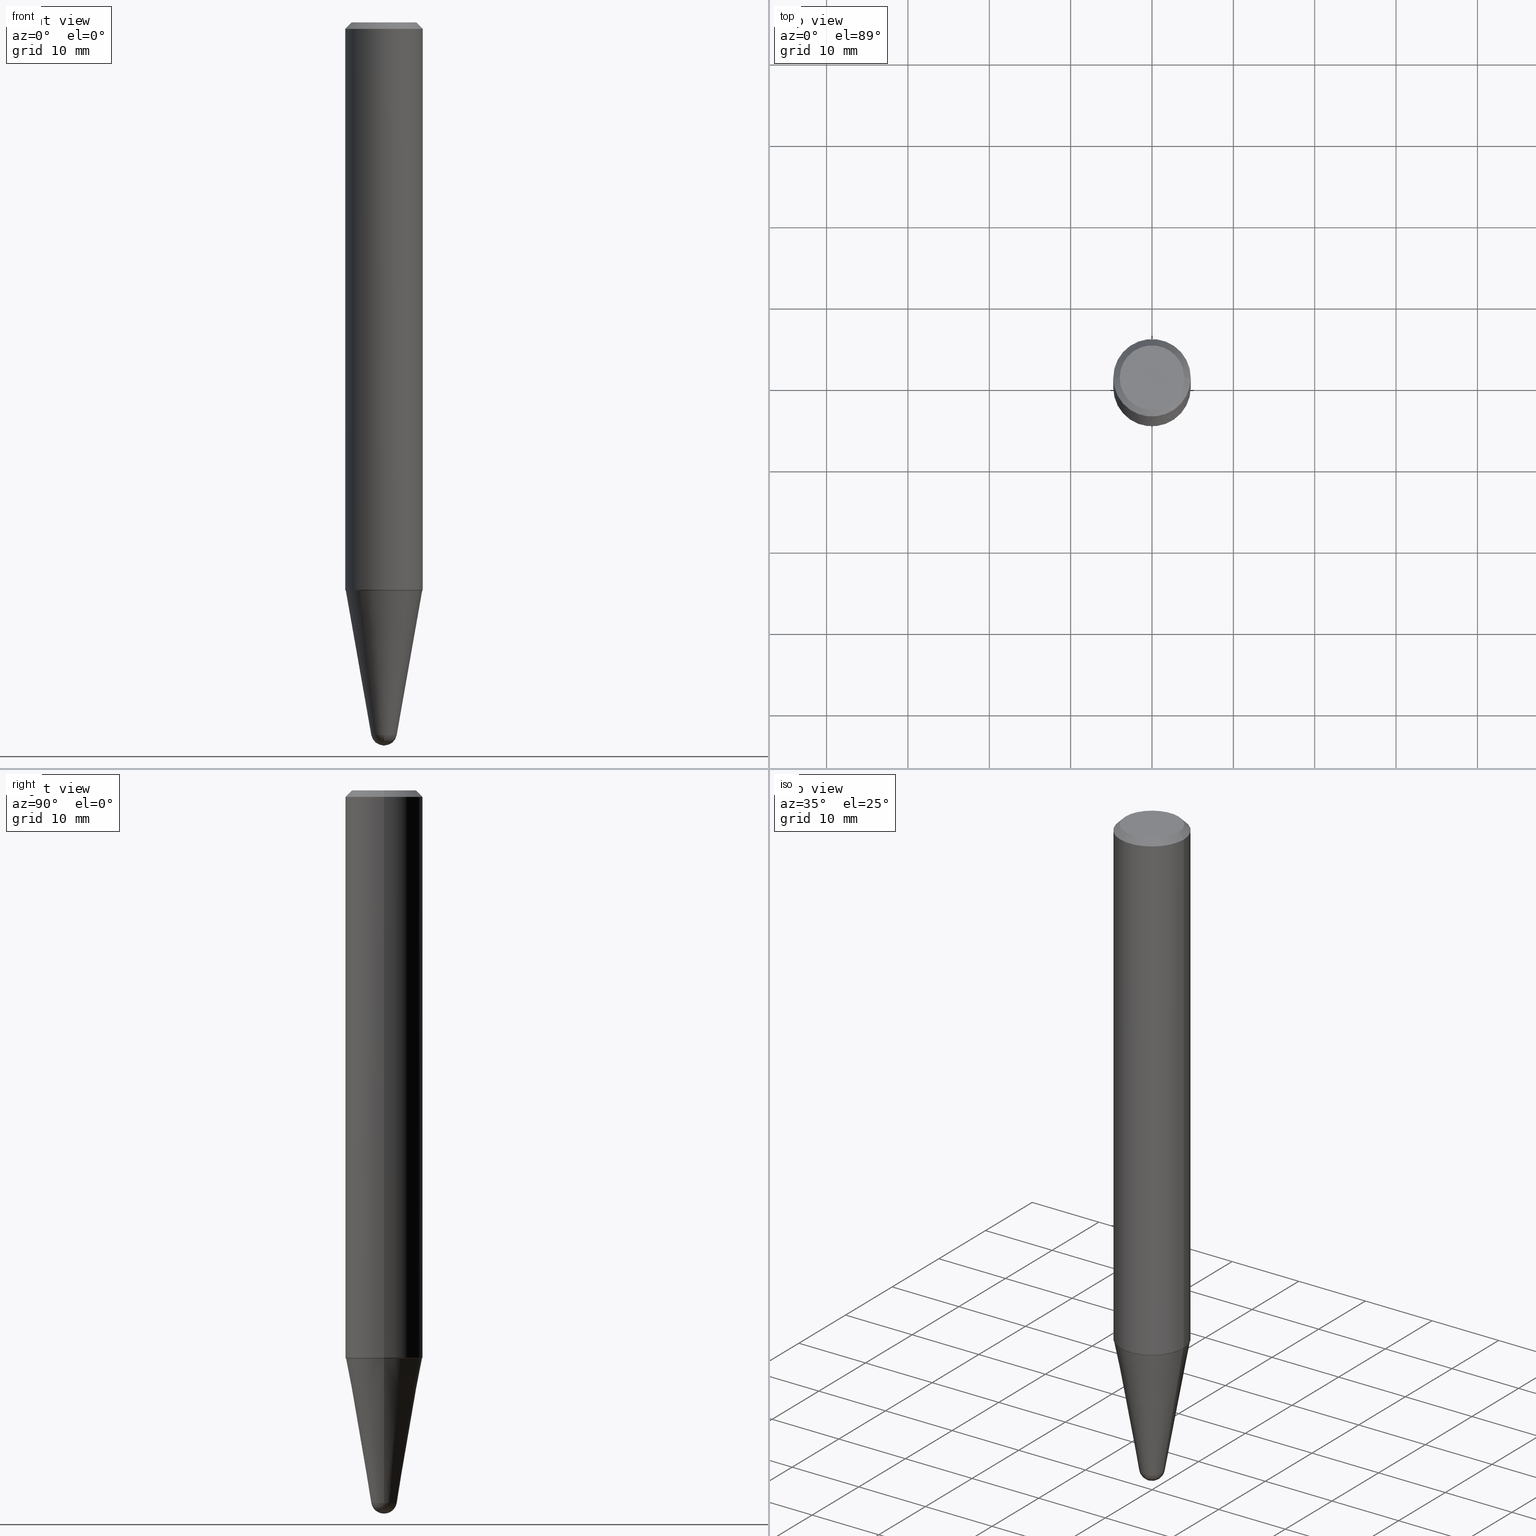
[diagram: canonical four-view strip — front | top / right | iso, engineering-drawing reading convention]
A machine part, canonical four-view strip (front | top / right | iso — engineering-drawing reading convention). The complete STEP part file that produces these views, byte-faithful:
ISO-10303-21;
HEADER;
FILE_DESCRIPTION (( 'STEP AP203' ),
    '1' );
FILE_NAME ('32429.STEP',
    '2024-03-04T15:23:38',
    ( '' ),
    ( '' ),
    'SwSTEP 2.0',
    'SolidWorks 2023',
    '' );
FILE_SCHEMA (( 'CONFIG_CONTROL_DESIGN' ));
ENDSEC;

DATA;
#1 = EDGE_LOOP ( 'NONE', ( #403, #85, #121, #433, #364 ) ) ;
#2 = DATE_AND_TIME ( #39, #348 ) ;
#3 = CIRCLE ( 'NONE', #205, 0.1851889624799288592 ) ;
#4 = EDGE_LOOP ( 'NONE', ( #76, #127, #188, #369 ) ) ;
#5 =( NAMED_UNIT ( * ) PLANE_ANGLE_UNIT ( ) SI_UNIT ( $, .RADIAN. ) );
#6 = ORIENTED_EDGE ( 'NONE', *, *, #455, .F. ) ;
#7 = CONICAL_SURFACE ( 'NONE', #165, 0.06155048456326323025, 0.1745329251994330311 ) ;
#8 = ADVANCED_FACE ( 'NONE', ( #298 ), #368, .T. ) ;
#9 = ORIENTED_EDGE ( 'NONE', *, *, #258, .F. ) ;
#10 = EDGE_CURVE ( 'NONE', #226, #13, #335, .T. ) ;
#11 = ORIENTED_EDGE ( 'NONE', *, *, #307, .T. ) ;
#12 = VERTEX_POINT ( 'NONE', #308 ) ;
#13 = VERTEX_POINT ( 'NONE', #128 ) ;
#14 = AXIS2_PLACEMENT_3D ( 'NONE', #157, #386, #109 ) ;
#15 = ADVANCED_FACE ( 'NONE', ( #443 ), #447, .F. ) ;
#16 = EDGE_LOOP ( 'NONE', ( #432, #11 ) ) ;
#17 = PLANE ( 'NONE',  #362 ) ;
#18 = VECTOR ( 'NONE', #136, 39.37007874015748143 ) ;
#19 = DIRECTION ( 'NONE',  ( 2.438088387897960049E-29, -3.491481338843145188E-15, -1.000000000000000000 ) ) ;
#20 = DIRECTION ( 'NONE',  ( 1.000000000000000000, -6.982962677686276177E-15, 0.000000000000000000 ) ) ;
#21 = LINE ( 'NONE', #311, #18 ) ;
#22 = PRODUCT_DEFINITION_SHAPE ( 'NONE', 'NONE',  #168 ) ;
#23 = CARTESIAN_POINT ( 'NONE',  ( 0.06155048456326323025, -1.246966492451259664E-14, -3.448353011104182908 ) ) ;
#24 = LINE ( 'NONE', #314, #49 ) ;
#25 = CARTESIAN_POINT ( 'NONE',  ( 6.725039217009124520E-29, -9.601573681818649859E-15, -2.750000000000000000 ) ) ;
#26 = AXIS2_PLACEMENT_3D ( 'NONE', #110, #113, #243 ) ;
#27 = DIRECTION ( 'NONE',  ( 1.000000000000000000, -6.982962677686269866E-15, 0.000000000000000000 ) ) ;
#28 = CARTESIAN_POINT ( 'NONE',  ( 8.432839721369867924E-29, -1.203986018801382488E-14, -3.448353011104182908 ) ) ;
#29 = COORDINATED_UNIVERSAL_TIME_OFFSET ( 5, 0, .BEHIND. ) ;
#30 = CIRCLE ( 'NONE', #297, 0.1874999999999999722 ) ;
#31 =( LENGTH_UNIT ( ) NAMED_UNIT ( * ) SI_UNIT ( $, .METRE. ) );
#32 = COORDINATED_UNIVERSAL_TIME_OFFSET ( 5, 0, .BEHIND. ) ;
#33 =( CONVERSION_BASED_UNIT ( 'INCH', #68 ) LENGTH_UNIT ( ) NAMED_UNIT ( #101 ) );
#34 = CIRCLE ( 'NONE', #104, 0.06155048456326323025 ) ;
#35 = APPLICATION_PROTOCOL_DEFINITION ( 'international standard', 'config_control_design', 1994, #259 ) ;
#36 = DIRECTION ( 'NONE',  ( -2.445468806185136597E-29, 3.491481338843145583E-15, 1.000000000000000000 ) ) ;
#37 = CYLINDRICAL_SURFACE ( 'NONE', #97, 0.1875000000000001943 ) ;
#38 = ORIENTED_EDGE ( 'NONE', *, *, #322, .F. ) ;
#39 = CALENDAR_DATE ( 2024, 4, 3 ) ;
#40 = CARTESIAN_POINT ( 'NONE',  ( 1.231246885473085875E-44, -1.757894238219357858E-30, -5.034809204513210114E-16 ) ) ;
#41 = DIRECTION ( 'NONE',  ( 1.000000000000000000, -6.982962677686265922E-15, 4.852736867747361162E-29 ) ) ;
#42 = ORIENTED_EDGE ( 'NONE', *, *, #139, .T. ) ;
#43 = APPROVAL_DATE_TIME ( #354, #262 ) ;
#44 = AXIS2_PLACEMENT_3D ( 'NONE', #89, #233, #204 ) ;
#45 = EDGE_LOOP ( 'NONE', ( #326, #372 ) ) ;
#46 = AXIS2_PLACEMENT_3D ( 'NONE', #141, #419, #66 ) ;
#47 = ORIENTED_EDGE ( 'NONE', *, *, #228, .T. ) ;
#48 = ORIENTED_EDGE ( 'NONE', *, *, #339, .T. ) ;
#49 = VECTOR ( 'NONE', #241, 39.37007874015748143 ) ;
#50 = ORIENTED_EDGE ( 'NONE', *, *, #339, .F. ) ;
#51 = DIRECTION ( 'NONE',  ( 1.000000000000000000, -6.982962677686265133E-15, 0.000000000000000000 ) ) ;
#52 = LINE ( 'NONE', #172, #449 ) ;
#53 = CIRCLE ( 'NONE', #120, 0.06155048456326323025 ) ;
#54 = DIRECTION ( 'NONE',  ( 1.000000000000000000, -6.982962677686265922E-15, 4.852736867747361162E-29 ) ) ;
#55 = CARTESIAN_POINT ( 'NONE',  ( -0.1851889624799288592, -8.285726961488018461E-15, -2.750000000000000000 ) ) ;
#56 = ADVANCED_FACE ( 'NONE', ( #134 ), #270, .T. ) ;
#57 = LOCAL_TIME ( 10, 23, 38.00000000000000000, #283 ) ;
#58 = CARTESIAN_POINT ( 'NONE',  ( 8.698928373755703197E-29, -1.158290521407307856E-14, -3.437499999999999556 ) ) ;
#59 = DIRECTION ( 'NONE',  ( 1.000000000000000000, -6.982962677686265922E-15, 4.876176775795935793E-29 ) ) ;
#60 = CARTESIAN_POINT ( 'NONE',  ( -0.1874999999999999722, 1.200196710227326499E-15, -0.03125000000000003469 ) ) ;
#61 = DIRECTION ( 'NONE',  ( 2.445468806185136597E-29, -3.491481338843145583E-15, -1.000000000000000000 ) ) ;
#62 = CIRCLE ( 'NONE', #235, 0.1851889624799288592 ) ;
#63 = EDGE_CURVE ( 'NONE', #162, #394, #21, .T. ) ;
#64 = CARTESIAN_POINT ( 'NONE',  ( 6.714318813664267806E-29, -9.586267787043473841E-15, -2.745616217504903922 ) ) ;
#65 = AXIS2_PLACEMENT_3D ( 'NONE', #387, #324, #27 ) ;
#66 = DIRECTION ( 'NONE',  ( 1.000000000000000000, -6.982962677686265922E-15, 4.891558762689333505E-29 ) ) ;
#67 = CARTESIAN_POINT ( 'NONE',  ( -1.450455682483482035E-44, 2.070866303999251778E-30, 5.931196827434296760E-16 ) ) ;
#68 = LENGTH_MEASURE_WITH_UNIT ( LENGTH_MEASURE( 0.02539999999999999897 ), #31 );
#69 = CARTESIAN_POINT ( 'NONE',  ( 0.1562500000000003608, -1.233702489286408115E-15, -5.034809204513129255E-16 ) ) ;
#70 =( NAMED_UNIT ( * ) SI_UNIT ( $, .STERADIAN. ) SOLID_ANGLE_UNIT ( ) );
#71 = CARTESIAN_POINT ( 'NONE',  ( 6.723816482606031719E-29, -9.599827941149227567E-15, -2.749499999999999833 ) ) ;
#72 = CARTESIAN_POINT ( 'NONE',  ( 8.698928373755703197E-29, -1.158290521407307856E-14, -3.437499999999999556 ) ) ;
#73 = APPROVAL_PERSON_ORGANIZATION ( #145, #436, #426 ) ;
#74 = SECURITY_CLASSIFICATION_LEVEL ( 'unclassified' ) ;
#75 = CARTESIAN_POINT ( 'NONE',  ( -0.1562500000000003608, 1.145642314307902935E-15, -5.034809204513289000E-16 ) ) ;
#76 = ORIENTED_EDGE ( 'NONE', *, *, #228, .F. ) ;
#77 = ADVANCED_FACE ( 'NONE', ( #272 ), #191, .T. ) ;
#78 = PERSON_AND_ORGANIZATION ( #416, #429 ) ;
#79 = ORIENTED_EDGE ( 'NONE', *, *, #63, .T. ) ;
#80 = COORDINATED_UNIVERSAL_TIME_OFFSET ( 5, 0, .BEHIND. ) ;
#81 = CIRCLE ( 'NONE', #456, 0.1846889624799289975 ) ;
#82 = APPROVAL ( #321, 'UNSPECIFIED' ) ;
#83 = ORIENTED_EDGE ( 'NONE', *, *, #179, .F. ) ;
#84 = AXIS2_PLACEMENT_3D ( 'NONE', #40, #420, #279 ) ;
#85 = ORIENTED_EDGE ( 'NONE', *, *, #322, .T. ) ;
#86 = CONICAL_SURFACE ( 'NONE', #123, 0.1851889624799288592, 0.7853981633974141952 ) ;
#87 = VERTEX_POINT ( 'NONE', #240 ) ;
#88 = EDGE_CURVE ( 'NONE', #255, #226, #381, .T. ) ;
#89 = CARTESIAN_POINT ( 'NONE',  ( 8.432839721369867924E-29, -1.203986018801382488E-14, -3.448353011104182908 ) ) ;
#90 = ADVANCED_FACE ( 'NONE', ( #276 ), #306, .F. ) ;
#91 = CARTESIAN_POINT ( 'NONE',  ( -4.373424968893222302E-16, -0.06155048456327496392, -3.448353011104182908 ) ) ;
#92 = DIRECTION ( 'NONE',  ( -2.445468806185136597E-29, 3.491481338843145583E-15, 1.000000000000000000 ) ) ;
#93 = PRODUCT ( '32429', '32429', '', ( #160 ) ) ;
#94 = CARTESIAN_POINT ( 'NONE',  ( 0.1875000000000003608, -1.089557328910965200E-14, -2.745616217504903922 ) ) ;
#95 = CARTESIAN_POINT ( 'NONE',  ( 6.725039217009124520E-29, -9.601573681818649859E-15, -2.750000000000000000 ) ) ;
#96 = FACE_OUTER_BOUND ( 'NONE', #365, .T. ) ;
#97 = AXIS2_PLACEMENT_3D ( 'NONE', #67, #424, #41 ) ;
#98 = DIRECTION ( 'NONE',  ( 1.000000000000000000, -6.982962677686265133E-15, 0.000000000000000000 ) ) ;
#99 = DIRECTION ( 'NONE',  ( -2.445468806185136877E-29, 3.491481338843145188E-15, 1.000000000000000000 ) ) ;
#100 = ADVANCED_FACE ( 'NONE', ( #375 ), #244, .T. ) ;
#101 = DIMENSIONAL_EXPONENTS ( 1.000000000000000000, 0.000000000000000000, 0.000000000000000000, 0.000000000000000000, 0.000000000000000000, 0.000000000000000000, 0.000000000000000000 ) ;
#102 = DIRECTION ( 'NONE',  ( 1.000000000000000000, -6.982962677686276177E-15, 0.000000000000000000 ) ) ;
#103 = VECTOR ( 'NONE', #208, 39.37007874015748854 ) ;
#104 = AXIS2_PLACEMENT_3D ( 'NONE', #385, #285, #151 ) ;
#105 = FACE_OUTER_BOUND ( 'NONE', #263, .T. ) ;
#106 = CIRCLE ( 'NONE', #323, 0.1875000000000003608 ) ;
#107 = EDGE_CURVE ( 'NONE', #334, #13, #444, .T. ) ;
#108 = CARTESIAN_POINT ( 'NONE',  ( -0.06155048456326323025, -1.160251769112441577E-14, -3.448353011104182908 ) ) ;
#109 = DIRECTION ( 'NONE',  ( 1.000000000000000000, -6.982962677686269077E-15, 0.000000000000000000 ) ) ;
#110 = CARTESIAN_POINT ( 'NONE',  ( 8.698928373755703197E-29, -1.158290521407307856E-14, -3.437499999999999556 ) ) ;
#111 = DIRECTION ( 'NONE',  ( -2.445468806185136597E-29, 3.491481338843145583E-15, 1.000000000000000000 ) ) ;
#112 = CONICAL_SURFACE ( 'NONE', #129, 0.1874999999999999722, 0.7853981633974498333 ) ;
#113 = DIRECTION ( 'NONE',  ( -1.000000000000000000, 6.982962677686265922E-15, -4.883557194083112901E-29 ) ) ;
#114 = PERSON_AND_ORGANIZATION ( #416, #429 ) ;
#115 = AXIS2_PLACEMENT_3D ( 'NONE', #167, #111, #183 ) ;
#116 = ORIENTED_EDGE ( 'NONE', *, *, #142, .T. ) ;
#117 = CIRCLE ( 'NONE', #46, 0.1562500000000003608 ) ;
#118 = ORIENTED_EDGE ( 'NONE', *, *, #266, .F. ) ;
#119 = ORIENTED_EDGE ( 'NONE', *, *, #179, .T. ) ;
#120 = AXIS2_PLACEMENT_3D ( 'NONE', #170, #212, #20 ) ;
#121 = ORIENTED_EDGE ( 'NONE', *, *, #287, .F. ) ;
#122 = EDGE_LOOP ( 'NONE', ( #231, #194, #224, #6 ) ) ;
#123 = AXIS2_PLACEMENT_3D ( 'NONE', #274, #373, #51 ) ;
#124 = VERTEX_POINT ( 'NONE', #91 ) ;
#125 = AXIS2_PLACEMENT_3D ( 'NONE', #280, #175, #180 ) ;
#126 = EDGE_LOOP ( 'NONE', ( #38, #359, #367, #195, #192 ) ) ;
#127 = ORIENTED_EDGE ( 'NONE', *, *, #442, .T. ) ;
#128 = CARTESIAN_POINT ( 'NONE',  ( 0.1874999999999999722, -1.418414293905023123E-15, -0.03125000000000003469 ) ) ;
#129 = AXIS2_PLACEMENT_3D ( 'NONE', #382, #61, #380 ) ;
#130 = EDGE_CURVE ( 'NONE', #197, #87, #81, .T. ) ;
#131 = CIRCLE ( 'NONE', #84, 0.1562500000000003608 ) ;
#132 = CARTESIAN_POINT ( 'NONE',  ( 0.1874999999999999722, -1.395452166421010480E-15, -0.03125000000000003469 ) ) ;
#133 = CC_DESIGN_PERSON_AND_ORGANIZATION_ASSIGNMENT ( #360, #431, ( #168 ) ) ;
#134 = FACE_OUTER_BOUND ( 'NONE', #265, .T. ) ;
#135 = DIRECTION ( 'NONE',  ( 1.000000000000000000, -6.982962677686265133E-15, 0.000000000000000000 ) ) ;
#136 = DIRECTION ( 'NONE',  ( -0.4226182617406660791, 6.167240084480654596E-15, 0.9063077870366654798 ) ) ;
#137 = DIRECTION ( 'NONE',  ( 1.000000000000000000, -6.982962677686266711E-15, 0.000000000000000000 ) ) ;
#138 = LINE ( 'NONE', #23, #313 ) ;
#139 = EDGE_CURVE ( 'NONE', #394, #226, #52, .T. ) ;
#140 = CARTESIAN_POINT ( 'NONE',  ( 6.723816482606031719E-29, -9.599827941149227567E-15, -2.749499999999999833 ) ) ;
#141 = CARTESIAN_POINT ( 'NONE',  ( 1.231246885473085875E-44, -1.757894238219357858E-30, -5.034809204513210114E-16 ) ) ;
#142 = EDGE_CURVE ( 'NONE', #163, #13, #24, .T. ) ;
#143 = DIRECTION ( 'NONE',  ( -1.000000000000000000, 7.105427357601001070E-15, -4.926315508542082329E-29 ) ) ;
#144 = CARTESIAN_POINT ( 'NONE',  ( 4.298047364988568595E-16, 0.06155048456325129536, -3.448353011104182908 ) ) ;
#145 = PERSON_AND_ORGANIZATION ( #416, #429 ) ;
#146 = DIRECTION ( 'NONE',  ( -2.445468806185136597E-29, 3.491481338843145583E-15, 1.000000000000000000 ) ) ;
#147 = LOCAL_TIME ( 10, 23, 38.00000000000000000, #32 ) ;
#148 = EDGE_CURVE ( 'NONE', #302, #257, #3, .T. ) ;
#149 = CARTESIAN_POINT ( 'NONE',  ( 0.1856889624799289984, -1.089648703580485765E-14, -2.749499999999999833 ) ) ;
#150 = DIRECTION ( 'NONE',  ( 0.000000000000000000, 0.000000000000000000, 1.000000000000000000 ) ) ;
#151 = DIRECTION ( 'NONE',  ( 1.000000000000000000, -6.982962677686276177E-15, 0.000000000000000000 ) ) ;
#152 = CARTESIAN_POINT ( 'NONE',  ( 0.1851889624799288592, -1.089474129513543536E-14, -2.750000000000000000 ) ) ;
#153 = AXIS2_PLACEMENT_3D ( 'NONE', #340, #19, #169 ) ;
#154 = ORIENTED_EDGE ( 'NONE', *, *, #307, .F. ) ;
#155 = APPROVAL_STATUS ( 'not_yet_approved' ) ;
#156 = EDGE_CURVE ( 'NONE', #355, #87, #138, .T. ) ;
#157 = CARTESIAN_POINT ( 'NONE',  ( 6.723816482606031719E-29, -9.599827941149227567E-15, -2.749499999999999833 ) ) ;
#158 = EDGE_LOOP ( 'NONE', ( #48, #42, #363, #439 ) ) ;
#159 = CC_DESIGN_APPROVAL ( #436, ( #184 ) ) ;
#160 = MECHANICAL_CONTEXT ( 'NONE', #452, 'mechanical' ) ;
#161 = ORIENTED_EDGE ( 'NONE', *, *, #328, .F. ) ;
#162 = VERTEX_POINT ( 'NONE', #410 ) ;
#163 = VERTEX_POINT ( 'NONE', #94 ) ;
#164 = ORIENTED_EDGE ( 'NONE', *, *, #190, .F. ) ;
#165 = AXIS2_PLACEMENT_3D ( 'NONE', #319, #453, #102 ) ;
#166 = ADVANCED_FACE ( 'NONE', ( #341 ), #112, .T. ) ;
#167 = CARTESIAN_POINT ( 'NONE',  ( 8.432839721369867924E-29, -1.203986018801382488E-14, -3.448353011104182908 ) ) ;
#168 = PRODUCT_DEFINITION ( 'UNKNOWN', '', #238, #413 ) ;
#169 = DIRECTION ( 'NONE',  ( -1.000000000000000000, 6.982962677686265922E-15, -4.876176775795935793E-29 ) ) ;
#170 = CARTESIAN_POINT ( 'NONE',  ( 8.432839721369867924E-29, -1.203986018801382488E-14, -3.448353011104182908 ) ) ;
#171 = DIRECTION ( 'NONE',  ( 6.982962677686265922E-15, 1.000000000000000000, 0.000000000000000000 ) ) ;
#172 = CARTESIAN_POINT ( 'NONE',  ( -0.1875000000000001943, 1.332267629550191398E-15, 5.931196827434205055E-16 ) ) ;
#173 = EDGE_CURVE ( 'NONE', #202, #124, #53, .T. ) ;
#174 = CARTESIAN_POINT ( 'NONE',  ( 6.725039217009124520E-29, -9.601573681818649859E-15, -2.750000000000000000 ) ) ;
#175 = DIRECTION ( 'NONE',  ( 2.445468806185136597E-29, -3.491481338843145583E-15, -1.000000000000000000 ) ) ;
#176 = CARTESIAN_POINT ( 'NONE',  ( 6.725039217009124520E-29, -9.601573681818649859E-15, -2.750000000000000000 ) ) ;
#177 = CIRCLE ( 'NONE', #379, 0.06155048456326323025 ) ;
#178 = DIRECTION ( 'NONE',  ( 1.000000000000000000, -6.982962677686269077E-15, 0.000000000000000000 ) ) ;
#179 = EDGE_CURVE ( 'NONE', #257, #302, #62, .T. ) ;
#180 = DIRECTION ( 'NONE',  ( -1.000000000000000000, 6.982962677686266711E-15, 0.000000000000000000 ) ) ;
#181 = AXIS2_PLACEMENT_3D ( 'NONE', #239, #345, #344 ) ;
#182 = APPROVAL_DATE_TIME ( #388, #436 ) ;
#183 = DIRECTION ( 'NONE',  ( 1.000000000000000000, -6.982962677686276177E-15, 0.000000000000000000 ) ) ;
#184 = SECURITY_CLASSIFICATION ( '', '', #74 ) ;
#185 = FACE_OUTER_BOUND ( 'NONE', #220, .T. ) ;
#186 = DATE_AND_TIME ( #293, #147 ) ;
#187 = DIRECTION ( 'NONE',  ( 1.000000000000000000, -6.982962677686269077E-15, 0.000000000000000000 ) ) ;
#188 = ORIENTED_EDGE ( 'NONE', *, *, #173, .F. ) ;
#189 = CALENDAR_DATE ( 2024, 4, 3 ) ;
#190 = EDGE_CURVE ( 'NONE', #257, #12, #347, .T. ) ;
#191 = CONICAL_SURFACE ( 'NONE', #398, 0.1851889624799288592, 0.7853981633974141952 ) ;
#192 = ORIENTED_EDGE ( 'NONE', *, *, #130, .F. ) ;
#193 = PERSON_AND_ORGANIZATION ( #416, #429 ) ;
#194 = ORIENTED_EDGE ( 'NONE', *, *, #148, .T. ) ;
#195 = ORIENTED_EDGE ( 'NONE', *, *, #156, .T. ) ;
#196 = CONICAL_SURFACE ( 'NONE', #125, 0.1874999999999999722, 0.7853981633974498333 ) ;
#197 = VERTEX_POINT ( 'NONE', #269 ) ;
#198 = CARTESIAN_POINT ( 'NONE',  ( 7.642090019328561499E-31, -1.091087918388484350E-16, -0.03125000000000003469 ) ) ;
#199 = ADVANCED_BREP_SHAPE_REPRESENTATION ( '32429', ( #356, #215, #284 ), #300 ) ;
#200 = CC_DESIGN_DATE_AND_TIME_ASSIGNMENT ( #2, #458, ( #184 ) ) ;
#201 = ORIENTED_EDGE ( 'NONE', *, *, #88, .T. ) ;
#202 = VERTEX_POINT ( 'NONE', #377 ) ;
#203 = EDGE_CURVE ( 'NONE', #302, #162, #412, .T. ) ;
#204 = DIRECTION ( 'NONE',  ( 1.000000000000000000, -6.982962677686276177E-15, 0.000000000000000000 ) ) ;
#205 = AXIS2_PLACEMENT_3D ( 'NONE', #25, #309, #450 ) ;
#206 = DIRECTION ( 'NONE',  ( -2.445468806185136597E-29, 3.491481338843145583E-15, 1.000000000000000000 ) ) ;
#207 = CC_DESIGN_SECURITY_CLASSIFICATION ( #184, ( #238 ) ) ;
#208 = DIRECTION ( 'NONE',  ( -0.7071067811865232589, 7.493145998870265808E-15, 0.7071067811865715536 ) ) ;
#209 = UNCERTAINTY_MEASURE_WITH_UNIT (LENGTH_MEASURE( 1.000000000000000082E-05 ), #33, 'distance_accuracy_value', 'NONE');
#210 = CARTESIAN_POINT ( 'NONE',  ( 6.725039217009124520E-29, -9.601573681818649859E-15, -2.750000000000000000 ) ) ;
#211 = CLOSED_SHELL ( 'NONE', ( #100, #8, #361, #389, #15 ) ) ;
#212 = DIRECTION ( 'NONE',  ( -2.445468806185136597E-29, 3.491481338843145583E-15, 1.000000000000000000 ) ) ;
#213 = ADVANCED_FACE ( 'NONE', ( #96 ), #17, .F. ) ;
#214 = CARTESIAN_POINT ( 'NONE',  ( -0.1875000000000003608, -8.254000157493284415E-15, -2.745616217504903922 ) ) ;
#215 = MANIFOLD_SOLID_BREP ( 'Body-Move/Copy2[2]', #281 ) ;
#216 = DIRECTION ( 'NONE',  ( -7.105427357601000281E-15, -1.000000000000000000, 0.000000000000000000 ) ) ;
#217 = CARTESIAN_POINT ( 'NONE',  ( 0.000000000000000000, 0.000000000000000000, 0.000000000000000000 ) ) ;
#218 = APPLICATION_PROTOCOL_DEFINITION ( 'international standard', 'config_control_design', 1994, #452 ) ;
#219 = CONICAL_SURFACE ( 'NONE', #445, 0.1856889624799289984, 0.4363323129985455795 ) ;
#220 = EDGE_LOOP ( 'NONE', ( #154, #229, #267, #337 ) ) ;
#221 = CARTESIAN_POINT ( 'NONE',  ( 6.725039217009124520E-29, -9.601573681818649859E-15, -2.750000000000000000 ) ) ;
#222 = ORIENTED_EDGE ( 'NONE', *, *, #400, .F. ) ;
#223 = APPROVAL_ROLE ( '' ) ;
#224 = ORIENTED_EDGE ( 'NONE', *, *, #190, .T. ) ;
#225 = VECTOR ( 'NONE', #252, 39.37007874015748143 ) ;
#226 = VERTEX_POINT ( 'NONE', #268 ) ;
#227 = LOCAL_TIME ( 10, 23, 38.00000000000000000, #80 ) ;
#228 = EDGE_CURVE ( 'NONE', #440, #430, #434, .T. ) ;
#229 = ORIENTED_EDGE ( 'NONE', *, *, #107, .T. ) ;
#230 = EDGE_CURVE ( 'NONE', #13, #226, #30, .T. ) ;
#231 = ORIENTED_EDGE ( 'NONE', *, *, #203, .F. ) ;
#232 = APPROVAL_PERSON_ORGANIZATION ( #427, #82, #327 ) ;
#233 = DIRECTION ( 'NONE',  ( -2.445468806185136597E-29, 3.491481338843145583E-15, 1.000000000000000000 ) ) ;
#234 = DIRECTION ( 'NONE',  ( 1.000000000000000000, -6.982962677686262766E-15, 0.000000000000000000 ) ) ;
#235 = AXIS2_PLACEMENT_3D ( 'NONE', #210, #206, #135 ) ;
#236 = LINE ( 'NONE', #149, #225 ) ;
#237 = DIRECTION ( 'NONE',  ( 0.7071067811865232589, -2.468850131082003836E-15, 0.7071067811865715536 ) ) ;
#238 = PRODUCT_DEFINITION_FORMATION_WITH_SPECIFIED_SOURCE ( 'ANY', '', #93, .NOT_KNOWN. ) ;
#239 = CARTESIAN_POINT ( 'NONE',  ( 8.698928373755703197E-29, -1.158290521407307856E-14, -3.437499999999999556 ) ) ;
#240 = CARTESIAN_POINT ( 'NONE',  ( 0.1846889624799289975, -1.089124981379659235E-14, -2.750000000000000000 ) ) ;
#241 = DIRECTION ( 'NONE',  ( -2.445468806185136877E-29, 3.491481338843145188E-15, 1.000000000000000000 ) ) ;
#242 = ADVANCED_FACE ( 'NONE', ( #408 ), #86, .T. ) ;
#243 = DIRECTION ( 'NONE',  ( 6.982962677686265922E-15, 1.000000000000000000, 0.000000000000000000 ) ) ;
#244 = CONICAL_SURFACE ( 'NONE', #44, 0.06155048456326323025, 0.1745329251994330311 ) ;
#245 = CC_DESIGN_PERSON_AND_ORGANIZATION_ASSIGNMENT ( #78, #260, ( #93 ) ) ;
#246 = SPHERICAL_SURFACE ( 'NONE', #26, 0.06250000000000006939 ) ;
#247 = CIRCLE ( 'NONE', #423, 0.06250000000000006939 ) ;
#248 = DATE_AND_TIME ( #189, #227 ) ;
#249 = DIRECTION ( 'NONE',  ( -0.1736481776669304145, 4.672282404182340767E-15, 0.9848077530122080203 ) ) ;
#250 = AXIS2_PLACEMENT_3D ( 'NONE', #409, #92, #54 ) ;
#251 = EDGE_CURVE ( 'NONE', #430, #202, #411, .T. ) ;
#252 = DIRECTION ( 'NONE',  ( 0.4226182617406660791, 2.132291770430281529E-16, 0.9063077870366654798 ) ) ;
#253 = PERSON_AND_ORGANIZATION_ROLE ( 'design_supplier' ) ;
#254 = AXIS2_PLACEMENT_3D ( 'NONE', #71, #36, #187 ) ;
#255 = VERTEX_POINT ( 'NONE', #75 ) ;
#256 = CALENDAR_DATE ( 2024, 4, 3 ) ;
#257 = VERTEX_POINT ( 'NONE', #152 ) ;
#258 = EDGE_CURVE ( 'NONE', #394, #163, #106, .T. ) ;
#259 = APPLICATION_CONTEXT ( 'configuration controlled 3d designs of mechanical parts and assemblies' ) ;
#260 = PERSON_AND_ORGANIZATION_ROLE ( 'design_owner' ) ;
#261 = ORIENTED_EDGE ( 'NONE', *, *, #353, .F. ) ;
#262 = APPROVAL ( #357, 'UNSPECIFIED' ) ;
#263 = EDGE_LOOP ( 'NONE', ( #402, #79, #50, #161 ) ) ;
#264 = EDGE_LOOP ( 'NONE', ( #435, #329, #299, #9 ) ) ;
#265 = EDGE_LOOP ( 'NONE', ( #301, #336, #116, #296 ) ) ;
#266 = EDGE_CURVE ( 'NONE', #12, #162, #332, .T. ) ;
#267 = ORIENTED_EDGE ( 'NONE', *, *, #230, .T. ) ;
#268 = CARTESIAN_POINT ( 'NONE',  ( -0.1874999999999999722, -3.515420659890970467E-15, -0.03125000000000003469 ) ) ;
#269 = CARTESIAN_POINT ( 'NONE',  ( -0.1846889624799289975, -8.289279675166815415E-15, -2.750000000000000000 ) ) ;
#270 = CYLINDRICAL_SURFACE ( 'NONE', #250, 0.1875000000000001943 ) ;
#271 = DIRECTION ( 'NONE',  ( -1.000000000000000000, 6.982962677686265922E-15, -4.876176775795935793E-29 ) ) ;
#272 = FACE_OUTER_BOUND ( 'NONE', #289, .T. ) ;
#273 = CC_DESIGN_PERSON_AND_ORGANIZATION_ASSIGNMENT ( #352, #253, ( #238 ) ) ;
#274 = CARTESIAN_POINT ( 'NONE',  ( 6.725039217009124520E-29, -9.601573681818649859E-15, -2.750000000000000000 ) ) ;
#275 = AXIS2_PLACEMENT_3D ( 'NONE', #221, #146, #454 ) ;
#276 = FACE_OUTER_BOUND ( 'NONE', #16, .T. ) ;
#277 = DIRECTION ( 'NONE',  ( 2.438088387897960049E-29, -3.491481338843145188E-15, -1.000000000000000000 ) ) ;
#278 = DIRECTION ( 'NONE',  ( -2.445468806185136597E-29, 3.491481338843145583E-15, 1.000000000000000000 ) ) ;
#279 = DIRECTION ( 'NONE',  ( 1.000000000000000000, -6.982962677686265922E-15, 4.891558762689333505E-29 ) ) ;
#280 = CARTESIAN_POINT ( 'NONE',  ( 7.642090019328561499E-31, -1.091087918388484350E-16, -0.03125000000000003469 ) ) ;
#281 = CLOSED_SHELL ( 'NONE', ( #342, #462, #366, #77, #213, #242, #371, #56, #166, #90 ) ) ;
#282 = FACE_OUTER_BOUND ( 'NONE', #158, .T. ) ;
#283 = COORDINATED_UNIVERSAL_TIME_OFFSET ( 5, 0, .BEHIND. ) ;
#284 = AXIS2_PLACEMENT_3D ( 'NONE', #217, #150, #422 ) ;
#285 = DIRECTION ( 'NONE',  ( -2.445468806185136597E-29, 3.491481338843145583E-15, 1.000000000000000000 ) ) ;
#286 = PERSON_AND_ORGANIZATION_ROLE ( 'creator' ) ;
#287 = EDGE_CURVE ( 'NONE', #87, #197, #315, .T. ) ;
#288 = CARTESIAN_POINT ( 'NONE',  ( 0.06155048456326323025, -1.168045736915459528E-14, -3.448353011104182908 ) ) ;
#289 = EDGE_LOOP ( 'NONE', ( #119, #437, #118, #164 ) ) ;
#290 = CALENDAR_DATE ( 2024, 4, 3 ) ;
#291 = AXIS2_PLACEMENT_3D ( 'NONE', #140, #278, #178 ) ;
#292 = EDGE_LOOP ( 'NONE', ( #295, #47, #222, #261 ) ) ;
#293 = CALENDAR_DATE ( 2024, 4, 3 ) ;
#294 = PRODUCT_RELATED_PRODUCT_CATEGORY ( 'detail', '', ( #93 ) ) ;
#295 = ORIENTED_EDGE ( 'NONE', *, *, #442, .F. ) ;
#296 = ORIENTED_EDGE ( 'NONE', *, *, #10, .F. ) ;
#297 = AXIS2_PLACEMENT_3D ( 'NONE', #312, #448, #137 ) ;
#298 = FACE_OUTER_BOUND ( 'NONE', #4, .T. ) ;
#299 = ORIENTED_EDGE ( 'NONE', *, *, #328, .T. ) ;
#300 =( GEOMETRIC_REPRESENTATION_CONTEXT ( 3 ) GLOBAL_UNCERTAINTY_ASSIGNED_CONTEXT ( ( #209 ) ) GLOBAL_UNIT_ASSIGNED_CONTEXT ( ( #33, #5, #70 ) ) REPRESENTATION_CONTEXT ( 'NONE', 'WORKASPACE' ) );
#301 = ORIENTED_EDGE ( 'NONE', *, *, #139, .F. ) ;
#302 = VERTEX_POINT ( 'NONE', #358 ) ;
#303 = DIRECTION ( 'NONE',  ( -1.000000000000000000, 6.982962677686265922E-15, -4.883557194083112901E-29 ) ) ;
#304 = AXIS2_PLACEMENT_3D ( 'NONE', #406, #277, #271 ) ;
#305 = DIRECTION ( 'NONE',  ( 1.000000000000000000, -6.982962677686266711E-15, 0.000000000000000000 ) ) ;
#306 = PLANE ( 'NONE',  #304 ) ;
#307 = EDGE_CURVE ( 'NONE', #334, #255, #131, .T. ) ;
#308 = CARTESIAN_POINT ( 'NONE',  ( 0.1856889624799289984, -1.089648703580485765E-14, -2.749499999999999833 ) ) ;
#309 = DIRECTION ( 'NONE',  ( -2.445468806185136597E-29, 3.491481338843145583E-15, 1.000000000000000000 ) ) ;
#310 = CC_DESIGN_PERSON_AND_ORGANIZATION_ASSIGNMENT ( #114, #286, ( #238 ) ) ;
#311 = CARTESIAN_POINT ( 'NONE',  ( -0.1856889624799289984, -8.280428507139794481E-15, -2.749499999999999833 ) ) ;
#312 = CARTESIAN_POINT ( 'NONE',  ( 7.642090019328561499E-31, -1.091087918388484350E-16, -0.03125000000000003469 ) ) ;
#313 = VECTOR ( 'NONE', #446, 39.37007874015748854 ) ;
#314 = CARTESIAN_POINT ( 'NONE',  ( 0.1875000000000001943, -1.309305502066174022E-15, 5.931196827434387479E-16 ) ) ;
#315 = CIRCLE ( 'NONE', #275, 0.1846889624799289975 ) ;
#316 = DIRECTION ( 'NONE',  ( -2.445468806185136597E-29, 3.491481338843145583E-15, 1.000000000000000000 ) ) ;
#317 = CIRCLE ( 'NONE', #65, 0.1875000000000003608 ) ;
#318 = CARTESIAN_POINT ( 'NONE',  ( 0.1851889624799288592, -1.089474129513543536E-14, -2.750000000000000000 ) ) ;
#319 = CARTESIAN_POINT ( 'NONE',  ( 8.432839721369867924E-29, -1.203986018801382488E-14, -3.448353011104182908 ) ) ;
#320 = DIRECTION ( 'NONE',  ( -2.445468806185136597E-29, 3.491481338843145583E-15, 1.000000000000000000 ) ) ;
#321 = APPROVAL_STATUS ( 'not_yet_approved' ) ;
#322 = EDGE_CURVE ( 'NONE', #202, #197, #459, .T. ) ;
#323 = AXIS2_PLACEMENT_3D ( 'NONE', #64, #349, #391 ) ;
#324 = DIRECTION ( 'NONE',  ( -2.445468806185136597E-29, 3.491481338843145583E-15, 1.000000000000000000 ) ) ;
#325 = APPROVAL_DATE_TIME ( #186, #82 ) ;
#326 = ORIENTED_EDGE ( 'NONE', *, *, #287, .T. ) ;
#327 = APPROVAL_ROLE ( '' ) ;
#328 = EDGE_CURVE ( 'NONE', #12, #163, #236, .T. ) ;
#329 = ORIENTED_EDGE ( 'NONE', *, *, #455, .T. ) ;
#330 = PERSON_AND_ORGANIZATION_ROLE ( 'classification_officer' ) ;
#331 = ORIENTED_EDGE ( 'NONE', *, *, #10, .T. ) ;
#332 = CIRCLE ( 'NONE', #254, 0.1856889624799289984 ) ;
#333 = ORIENTED_EDGE ( 'NONE', *, *, #107, .F. ) ;
#334 = VERTEX_POINT ( 'NONE', #69 ) ;
#335 = CIRCLE ( 'NONE', #346, 0.1874999999999999722 ) ;
#336 = ORIENTED_EDGE ( 'NONE', *, *, #258, .T. ) ;
#337 = ORIENTED_EDGE ( 'NONE', *, *, #88, .F. ) ;
#338 = DIRECTION ( 'NONE',  ( 0.7071067811865486830, -7.319954787623260779E-15, -0.7071067811865464625 ) ) ;
#339 = EDGE_CURVE ( 'NONE', #163, #394, #317, .T. ) ;
#340 = CARTESIAN_POINT ( 'NONE',  ( 6.725039217009124520E-29, -9.601573681818649859E-15, -2.750000000000000000 ) ) ;
#341 = FACE_OUTER_BOUND ( 'NONE', #428, .T. ) ;
#342 = ADVANCED_FACE ( 'NONE', ( #185 ), #196, .T. ) ;
#343 = CC_DESIGN_APPROVAL ( #82, ( #168 ) ) ;
#344 = DIRECTION ( 'NONE',  ( 6.982962677686265922E-15, 1.000000000000000000, 0.000000000000000000 ) ) ;
#345 = DIRECTION ( 'NONE',  ( 1.000000000000000000, -6.982962677686265922E-15, 4.883557194083112340E-29 ) ) ;
#346 = AXIS2_PLACEMENT_3D ( 'NONE', #198, #441, #305 ) ;
#347 = LINE ( 'NONE', #318, #376 ) ;
#348 = LOCAL_TIME ( 10, 23, 38.00000000000000000, #29 ) ;
#349 = DIRECTION ( 'NONE',  ( -2.445468806185136597E-29, 3.491481338843145583E-15, 1.000000000000000000 ) ) ;
#350 = CARTESIAN_POINT ( 'NONE',  ( 8.854442568795959473E-29, -1.179729577650343892E-14, -3.500000000000000000 ) ) ;
#351 = FACE_OUTER_BOUND ( 'NONE', #264, .T. ) ;
#352 = PERSON_AND_ORGANIZATION ( #416, #429 ) ;
#353 = EDGE_CURVE ( 'NONE', #124, #355, #34, .T. ) ;
#354 = DATE_AND_TIME ( #256, #401 ) ;
#355 = VERTEX_POINT ( 'NONE', #288 ) ;
#356 = MANIFOLD_SOLID_BREP ( 'Body-Move/Copy2[1]', #211 ) ;
#357 = APPROVAL_STATUS ( 'not_yet_approved' ) ;
#358 = CARTESIAN_POINT ( 'NONE',  ( -0.1851889624799288592, -8.283077734313906471E-15, -2.750000000000000000 ) ) ;
#359 = ORIENTED_EDGE ( 'NONE', *, *, #173, .T. ) ;
#360 = PERSON_AND_ORGANIZATION ( #416, #429 ) ;
#361 = ADVANCED_FACE ( 'NONE', ( #425 ), #246, .T. ) ;
#362 = AXIS2_PLACEMENT_3D ( 'NONE', #176, #451, #59 ) ;
#363 = ORIENTED_EDGE ( 'NONE', *, *, #230, .F. ) ;
#364 = ORIENTED_EDGE ( 'NONE', *, *, #400, .T. ) ;
#365 = EDGE_LOOP ( 'NONE', ( #83, #396 ) ) ;
#366 = ADVANCED_FACE ( 'NONE', ( #105 ), #219, .T. ) ;
#367 = ORIENTED_EDGE ( 'NONE', *, *, #353, .T. ) ;
#368 = SPHERICAL_SURFACE ( 'NONE', #383, 0.06250000000000006939 ) ;
#369 = ORIENTED_EDGE ( 'NONE', *, *, #251, .F. ) ;
#370 = APPROVAL_PERSON_ORGANIZATION ( #461, #262, #223 ) ;
#371 = ADVANCED_FACE ( 'NONE', ( #351 ), #415, .T. ) ;
#372 = ORIENTED_EDGE ( 'NONE', *, *, #130, .T. ) ;
#373 = DIRECTION ( 'NONE',  ( -2.445468806185136597E-29, 3.491481338843145583E-15, 1.000000000000000000 ) ) ;
#374 = CC_DESIGN_PERSON_AND_ORGANIZATION_ASSIGNMENT ( #193, #330, ( #184 ) ) ;
#375 = FACE_OUTER_BOUND ( 'NONE', #1, .T. ) ;
#376 = VECTOR ( 'NONE', #237, 39.37007874015748854 ) ;
#377 = CARTESIAN_POINT ( 'NONE',  ( -0.06155048456326323025, -9.945898683145615595E-15, -3.448353011104182908 ) ) ;
#378 = DIRECTION ( 'NONE',  ( -2.445468806185136597E-29, 3.491481338843145583E-15, 1.000000000000000000 ) ) ;
#379 = AXIS2_PLACEMENT_3D ( 'NONE', #28, #320, #457 ) ;
#380 = DIRECTION ( 'NONE',  ( -1.000000000000000000, 6.982962677686266711E-15, 0.000000000000000000 ) ) ;
#381 = LINE ( 'NONE', #60, #390 ) ;
#382 = CARTESIAN_POINT ( 'NONE',  ( 7.642090019328561499E-31, -1.091087918388484350E-16, -0.03125000000000003469 ) ) ;
#383 = AXIS2_PLACEMENT_3D ( 'NONE', #58, #303, #171 ) ;
#384 = CARTESIAN_POINT ( 'NONE',  ( 6.723816482606031719E-29, -9.599827941149227567E-15, -2.749499999999999833 ) ) ;
#385 = CARTESIAN_POINT ( 'NONE',  ( 8.432839721369867924E-29, -1.203986018801382488E-14, -3.448353011104182908 ) ) ;
#386 = DIRECTION ( 'NONE',  ( -2.445468806185136597E-29, 3.491481338843145583E-15, 1.000000000000000000 ) ) ;
#387 = CARTESIAN_POINT ( 'NONE',  ( 6.714318813664267806E-29, -9.586267787043473841E-15, -2.745616217504903922 ) ) ;
#388 = DATE_AND_TIME ( #290, #57 ) ;
#389 = ADVANCED_FACE ( 'NONE', ( #418 ), #7, .T. ) ;
#390 = VECTOR ( 'NONE', #414, 39.37007874015748143 ) ;
#391 = DIRECTION ( 'NONE',  ( 1.000000000000000000, -6.982962677686269866E-15, 0.000000000000000000 ) ) ;
#392 = DIRECTION ( 'NONE',  ( 1.000000000000000000, -6.982962677686269077E-15, 0.000000000000000000 ) ) ;
#393 = EDGE_CURVE ( 'NONE', #255, #334, #117, .T. ) ;
#394 = VERTEX_POINT ( 'NONE', #214 ) ;
#395 = COORDINATED_UNIVERSAL_TIME_OFFSET ( 5, 0, .BEHIND. ) ;
#396 = ORIENTED_EDGE ( 'NONE', *, *, #148, .F. ) ;
#397 = DATE_TIME_ROLE ( 'creation_date' ) ;
#398 = AXIS2_PLACEMENT_3D ( 'NONE', #95, #378, #98 ) ;
#399 = ORIENTED_EDGE ( 'NONE', *, *, #393, .F. ) ;
#400 = EDGE_CURVE ( 'NONE', #355, #430, #177, .T. ) ;
#401 = LOCAL_TIME ( 10, 23, 38.00000000000000000, #395 ) ;
#402 = ORIENTED_EDGE ( 'NONE', *, *, #266, .T. ) ;
#403 = ORIENTED_EDGE ( 'NONE', *, *, #251, .T. ) ;
#404 = VECTOR ( 'NONE', #249, 39.37007874015748854 ) ;
#405 = VECTOR ( 'NONE', #338, 39.37007874015748143 ) ;
#406 = CARTESIAN_POINT ( 'NONE',  ( 6.156234427365429373E-45, -8.789471191096789290E-31, -2.517404602256605057E-16 ) ) ;
#407 = CC_DESIGN_DATE_AND_TIME_ASSIGNMENT ( #248, #397, ( #168 ) ) ;
#408 = FACE_OUTER_BOUND ( 'NONE', #122, .T. ) ;
#409 = CARTESIAN_POINT ( 'NONE',  ( -1.450455682483482035E-44, 2.070866303999251778E-30, 5.931196827434296760E-16 ) ) ;
#410 = CARTESIAN_POINT ( 'NONE',  ( -0.1856889624799289984, -8.280428507139794481E-15, -2.749499999999999833 ) ) ;
#411 = CIRCLE ( 'NONE', #115, 0.06155048456326323025 ) ;
#412 = LINE ( 'NONE', #55, #103 ) ;
#413 = DESIGN_CONTEXT ( 'detailed design', #259, 'design' ) ;
#414 = DIRECTION ( 'NONE',  ( -0.7071067811865486830, 2.468850131082268893E-15, -0.7071067811865464625 ) ) ;
#415 = CONICAL_SURFACE ( 'NONE', #291, 0.1856889624799289984, 0.4363323129985455795 ) ;
#416 = PERSON ( 'UNSPECIFIED', 'UNSPECIFIED', 'UNSPECIFIED', ('UNSPECIFIED'), ('UNSPECIFIED'), ('UNSPECIFIED') ) ;
#417 = DIRECTION ( 'NONE',  ( -2.445468806185136597E-29, 3.491481338843145583E-15, 1.000000000000000000 ) ) ;
#418 = FACE_OUTER_BOUND ( 'NONE', #126, .T. ) ;
#419 = DIRECTION ( 'NONE',  ( -2.445468806185136597E-29, 3.491481338843145583E-15, 1.000000000000000000 ) ) ;
#420 = DIRECTION ( 'NONE',  ( -2.445468806185136597E-29, 3.491481338843145583E-15, 1.000000000000000000 ) ) ;
#421 = CIRCLE ( 'NONE', #14, 0.1856889624799289984 ) ;
#422 = DIRECTION ( 'NONE',  ( 1.000000000000000000, 0.000000000000000000, 0.000000000000000000 ) ) ;
#423 = AXIS2_PLACEMENT_3D ( 'NONE', #72, #143, #216 ) ;
#424 = DIRECTION ( 'NONE',  ( -2.445468806185136597E-29, 3.491481338843145583E-15, 1.000000000000000000 ) ) ;
#425 = FACE_OUTER_BOUND ( 'NONE', #292, .T. ) ;
#426 = APPROVAL_ROLE ( '' ) ;
#427 = PERSON_AND_ORGANIZATION ( #416, #429 ) ;
#428 = EDGE_LOOP ( 'NONE', ( #333, #399, #201, #331 ) ) ;
#429 = ORGANIZATION ( 'UNSPECIFIED', 'UNSPECIFIED', '' ) ;
#430 = VERTEX_POINT ( 'NONE', #144 ) ;
#431 = PERSON_AND_ORGANIZATION_ROLE ( 'creator' ) ;
#432 = ORIENTED_EDGE ( 'NONE', *, *, #393, .T. ) ;
#433 = ORIENTED_EDGE ( 'NONE', *, *, #156, .F. ) ;
#434 = CIRCLE ( 'NONE', #181, 0.06250000000000006939 ) ;
#435 = ORIENTED_EDGE ( 'NONE', *, *, #63, .F. ) ;
#436 = APPROVAL ( #155, 'UNSPECIFIED' ) ;
#437 = ORIENTED_EDGE ( 'NONE', *, *, #203, .T. ) ;
#438 = CC_DESIGN_APPROVAL ( #262, ( #238 ) ) ;
#439 = ORIENTED_EDGE ( 'NONE', *, *, #142, .F. ) ;
#440 = VERTEX_POINT ( 'NONE', #350 ) ;
#441 = DIRECTION ( 'NONE',  ( -2.445468806185136597E-29, 3.491481338843145583E-15, 1.000000000000000000 ) ) ;
#442 = EDGE_CURVE ( 'NONE', #440, #124, #247, .T. ) ;
#443 = FACE_OUTER_BOUND ( 'NONE', #45, .T. ) ;
#444 = LINE ( 'NONE', #132, #405 ) ;
#445 = AXIS2_PLACEMENT_3D ( 'NONE', #384, #316, #392 ) ;
#446 = DIRECTION ( 'NONE',  ( 0.1736481776669304145, 2.225859148293765253E-15, 0.9848077530122080203 ) ) ;
#447 = PLANE ( 'NONE',  #153 ) ;
#448 = DIRECTION ( 'NONE',  ( -2.445468806185136597E-29, 3.491481338843145583E-15, 1.000000000000000000 ) ) ;
#449 = VECTOR ( 'NONE', #99, 39.37007874015748143 ) ;
#450 = DIRECTION ( 'NONE',  ( 1.000000000000000000, -6.982962677686265133E-15, 0.000000000000000000 ) ) ;
#451 = DIRECTION ( 'NONE',  ( -2.438088387897960049E-29, 3.491481338843145188E-15, 1.000000000000000000 ) ) ;
#452 = APPLICATION_CONTEXT ( 'configuration controlled 3d designs of mechanical parts and assemblies' ) ;
#453 = DIRECTION ( 'NONE',  ( -2.445468806185136597E-29, 3.491481338843145583E-15, 1.000000000000000000 ) ) ;
#454 = DIRECTION ( 'NONE',  ( 1.000000000000000000, -6.982962677686262766E-15, 0.000000000000000000 ) ) ;
#455 = EDGE_CURVE ( 'NONE', #162, #12, #421, .T. ) ;
#456 = AXIS2_PLACEMENT_3D ( 'NONE', #174, #417, #234 ) ;
#457 = DIRECTION ( 'NONE',  ( 1.000000000000000000, -6.982962677686276177E-15, 0.000000000000000000 ) ) ;
#458 = DATE_TIME_ROLE ( 'classification_date' ) ;
#459 = LINE ( 'NONE', #108, #404 ) ;
#460 = SHAPE_DEFINITION_REPRESENTATION ( #22, #199 ) ;
#461 = PERSON_AND_ORGANIZATION ( #416, #429 ) ;
#462 = ADVANCED_FACE ( 'NONE', ( #282 ), #37, .T. ) ;
ENDSEC;
END-ISO-10303-21;
